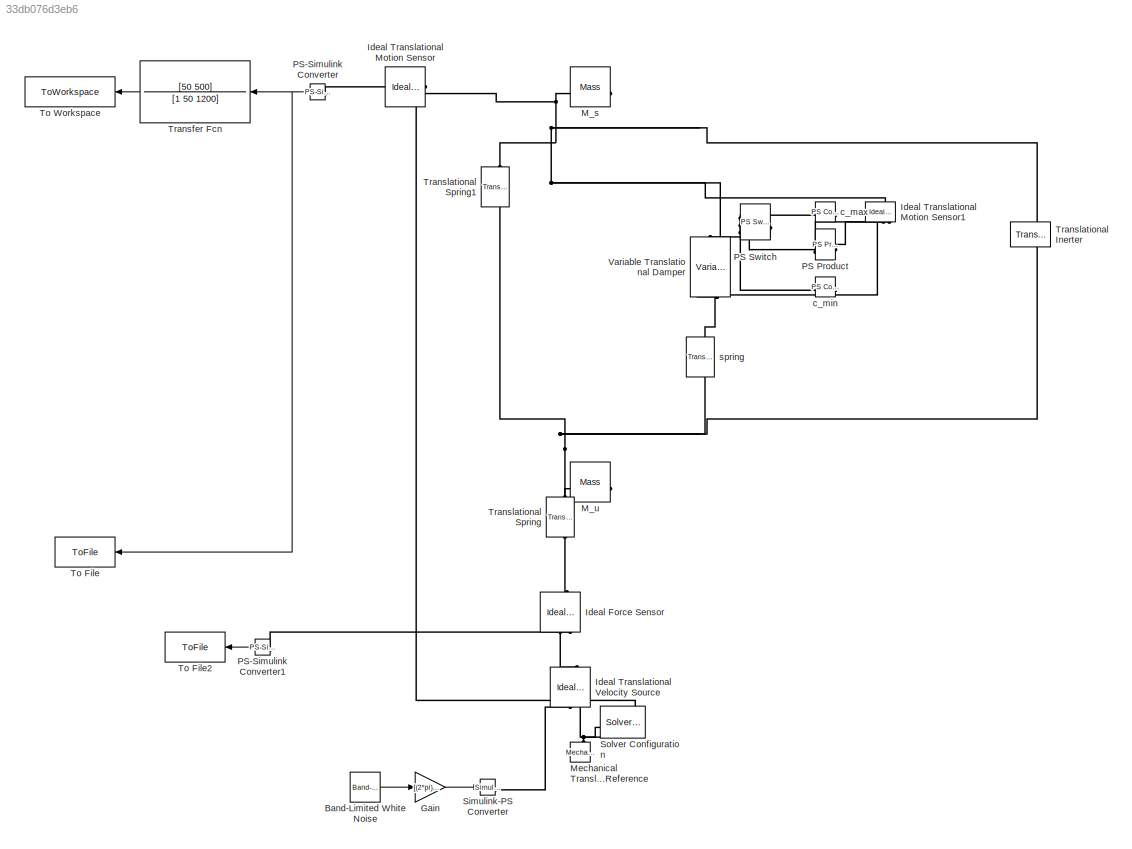
MODEL slx_33db076d3eb6
KIND model
CONFIG AbsTol = 1e-6
CONFIG EnableMultiTasking = off
CONFIG FixedStep = auto
CONFIG MaxStep = 1e-4
CONFIG MinStep = 1e-12
CONFIG RelTol = 1e-6
CONFIG SampleTimeConstraint = Unconstrained
CONFIG SolverName = VariableStepAuto
CONFIG StartTime = 0.0
CONFIG StopTime = 200
BLOCK [Reference] Band-Limited White Noise  REF=simulink/Sources/Band-Limited
White Noise
  SourceBlock = simulink/Sources/Band-Limited\nWhite Noise
  SourceType = Band-Limited White Noise.
BLOCK [Gain] Gain
  Gain = [(2*pi)*(25*5*10^-7)^0.5]
BLOCK [Reference] Ideal Force Sensor  REF=fl_lib/Mechanical/Mechanical Sensors/Ideal Force Sensor
  NameLocation = left
  SourceBlock = fl_lib/Mechanical/Mechanical Sensors/Ideal Force Sensor
  SourceType = Ideal Force Sensor
BLOCK [Reference] Ideal Translational Motion Sensor  REF=fl_lib/Mechanical/Mechanical Sensors/Ideal Translational
Motion Sensor
  NameLocation = top
  SourceBlock = fl_lib/Mechanical/Mechanical Sensors/Ideal Translational\nMotion Sensor
  SourceType = Ideal Translational\nMotion Sensor
BLOCK [Reference] Ideal Translational Motion Sensor1  REF=fl_lib/Mechanical/Mechanical Sensors/Ideal Translational
Motion Sensor
  NameLocation = left
  SourceBlock = fl_lib/Mechanical/Mechanical Sensors/Ideal Translational\nMotion Sensor
  SourceType = Ideal Translational\nMotion Sensor
BLOCK [Reference] Ideal Translational Velocity Source  REF=fl_lib/Mechanical/Mechanical Sources/Ideal Translational
Velocity Source
  NameLocation = right
  SourceBlock = fl_lib/Mechanical/Mechanical Sources/Ideal Translational\nVelocity Source
  SourceType = Ideal Translational\nVelocity Source
BLOCK [Reference] M_s  REF=fl_lib/Mechanical/Translational
Elements/Mass
  NameLocation = top
  SourceBlock = fl_lib/Mechanical/Translational\nElements/Mass
  SourceType = Mass
BLOCK [Reference] M_u  REF=fl_lib/Mechanical/Translational
Elements/Mass
  NameLocation = top
  SourceBlock = fl_lib/Mechanical/Translational\nElements/Mass
  SourceType = Mass
BLOCK [Reference] Mechanical Translational Reference  REF=fl_lib/Mechanical/Translational
Elements/Mechanical
Translational
Reference
  NameLocation = right
  SourceBlock = fl_lib/Mechanical/Translational\nElements/Mechanical\nTranslational\nReference
  SourceType = Mechanical\nTranslational\nReference
BLOCK [Reference] PS Product  REF=fl_lib/Physical Signals/Functions/PS Product
  NameLocation = top
  SourceBlock = fl_lib/Physical Signals/Functions/PS Product
  SourceType = PS Product
BLOCK [Reference] PS Switch  REF=fl_lib/Physical Signals/Nonlinear Operators/PS Switch
  NameLocation = top
  SourceBlock = fl_lib/Physical Signals/Nonlinear Operators/PS Switch
  SourceType = PS Switch
BLOCK [Reference] PS-Simulink Converter  REF=nesl_utility/PS-Simulink
Converter
  NameLocation = top
  SourceBlock = nesl_utility/PS-Simulink\nConverter
  SourceType = PS-Simulink\nConverter
BLOCK [Reference] PS-Simulink Converter1  REF=nesl_utility/PS-Simulink
Converter
  NameLocation = top
  SourceBlock = nesl_utility/PS-Simulink\nConverter
  SourceType = PS-Simulink\nConverter
BLOCK [Reference] Simulink-PS Converter  REF=nesl_utility/Simulink-PS
Converter
  NameLocation = left
  SourceBlock = nesl_utility/Simulink-PS\nConverter
  SourceType = Simulink-PS\nConverter
BLOCK [Reference] Solver Configuration  REF=nesl_utility/Solver
Configuration
  NameLocation = top
  SourceBlock = nesl_utility/Solver\nConfiguration
  SourceType = Solver\nConfiguration
BLOCK [ToFile] To File
  Filename = acceleration.mat
  NameLocation = top
  SaveFormat = Timeseries
BLOCK [ToFile] To File2
  Filename = tire_force.mat
  NameLocation = top
  SaveFormat = Timeseries
BLOCK [ToWorkspace] To Workspace
  MaxDataPoints = inf
  NameLocation = top
  SampleTime = -1
  SaveFormat = Timeseries
  VariableName = acceleration
BLOCK [TransferFcn] Transfer Fcn
  Denominator = [1 50 1200]
  NameLocation = top
  Numerator = [50 500]
BLOCK [Reference] Translational Inerter  REF=fl_lib/Mechanical/Translational
Elements/Translational
Inerter
  NameLocation = left
  SourceBlock = fl_lib/Mechanical/Translational\nElements/Translational\nInerter
  SourceType = Translational\nInerter
BLOCK [Reference] Translational Spring  REF=fl_lib/Mechanical/Translational
Elements/Translational Spring
  NameLocation = left
  SourceBlock = fl_lib/Mechanical/Translational\nElements/Translational Spring
  SourceType = Translational Spring
BLOCK [Reference] Translational Spring1  REF=fl_lib/Mechanical/Translational
Elements/Translational Spring
  NameLocation = left
  SourceBlock = fl_lib/Mechanical/Translational\nElements/Translational Spring
  SourceType = Translational Spring
BLOCK [Reference] Variable Translational Damper  REF=sdl_lib/Couplings & Drives/Springs & Dampers/Variable
Translational Damper
  NameLocation = left
  SourceBlock = sdl_lib/Couplings & Drives/Springs & Dampers/Variable\nTranslational Damper
  SourceType = Variable\nTranslational Damper
BLOCK [Reference] c_max  REF=fl_lib/Physical Signals/Sources/PS Constant
  NameLocation = top
  SourceBlock = fl_lib/Physical Signals/Sources/PS Constant
  SourceType = PS Constant
BLOCK [Reference] c_min  REF=fl_lib/Physical Signals/Sources/PS Constant
  NameLocation = top
  SourceBlock = fl_lib/Physical Signals/Sources/PS Constant
  SourceType = PS Constant
BLOCK [Reference] spring  REF=fl_lib/Mechanical/Translational
Elements/Translational Spring
  NameLocation = left
  SourceBlock = fl_lib/Mechanical/Translational\nElements/Translational Spring
  SourceType = Translational Spring
LINE Band-Limited White Noise:1 -> Gain:1
LINE Gain:1 -> Simulink-PS Converter:1
LINE PS-Simulink Converter1:1 -> To File2:1
NET PS-Simulink Converter:1 -> To File:1, Transfer Fcn:1
LINE Transfer Fcn:1 -> To Workspace:1
PLINE Ideal Force Sensor:LConn1 -- Translational Spring:RConn1
PLINE Ideal Force Sensor:RConn1 -- Ideal Translational Velocity Source:LConn1
PLINE Ideal Force Sensor:RConn2 -- PS-Simulink Converter1:LConn1
PNET net1: Ideal Translational Motion Sensor1:LConn1 -- Ideal Translational Motion Sensor:LConn1 -- M_s:LConn1 -- Translational Inerter:LConn1 -- Translational Spring1:LConn1 -- Variable Translational Damper:LConn2
PNET net2: Ideal Translational Motion Sensor1:RConn1 -- Variable Translational Damper:RConn1 -- spring:LConn1
PLINE Ideal Translational Motion Sensor1:RConn2 -- PS Product:LConn1
PLINE Ideal Translational Motion Sensor1:RConn3 -- PS Product:LConn2
PNET net3: Ideal Translational Motion Sensor:RConn1 -- Ideal Translational Velocity Source:RConn2 -- Mechanical Translational Reference:LConn1 -- Solver Configuration:RConn1
PLINE Ideal Translational Motion Sensor:RConn2 -- PS-Simulink Converter:LConn1
PLINE Ideal Translational Velocity Source:RConn1 -- Simulink-PS Converter:RConn1
PNET net4: M_u:LConn1 -- Translational Inerter:RConn1 -- Translational Spring1:RConn1 -- Translational Spring:LConn1 -- spring:RConn1
PLINE PS Product:RConn1 -- PS Switch:LConn2
PLINE PS Switch:LConn1 -- c_min:RConn1
PLINE PS Switch:LConn3 -- c_max:RConn1
PLINE PS Switch:RConn1 -- Variable Translational Damper:LConn1
note: NET lines group one-source signal fan-out (src -> all destinations, sorted); 1:1 wires keep LINE; PNET lines group multi-terminal physical nets as a canonical sorted terminal list (undirected conserving connections); 2-terminal nets keep the pairwise PLINE form
